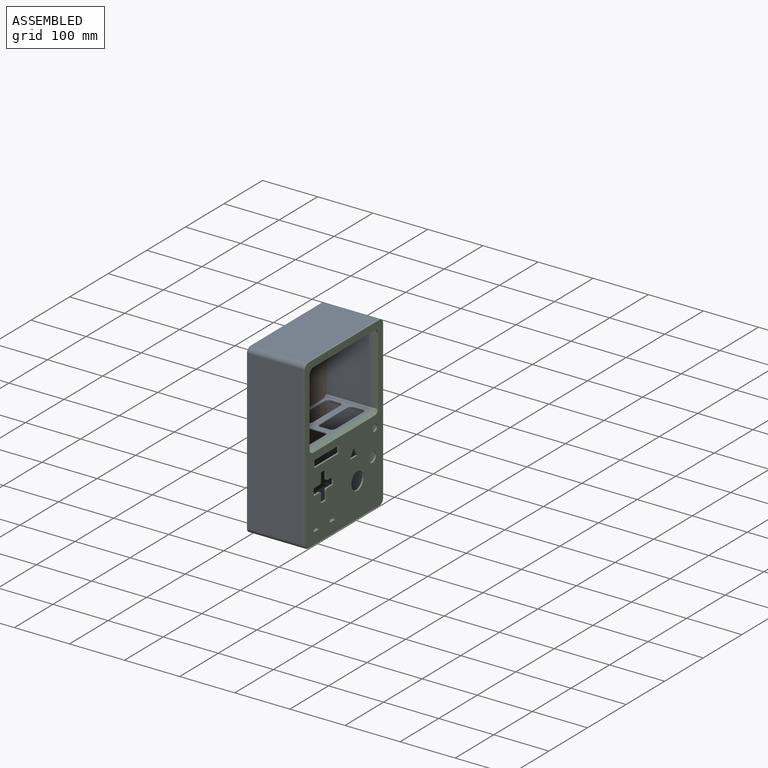
[diagram: assembled view]
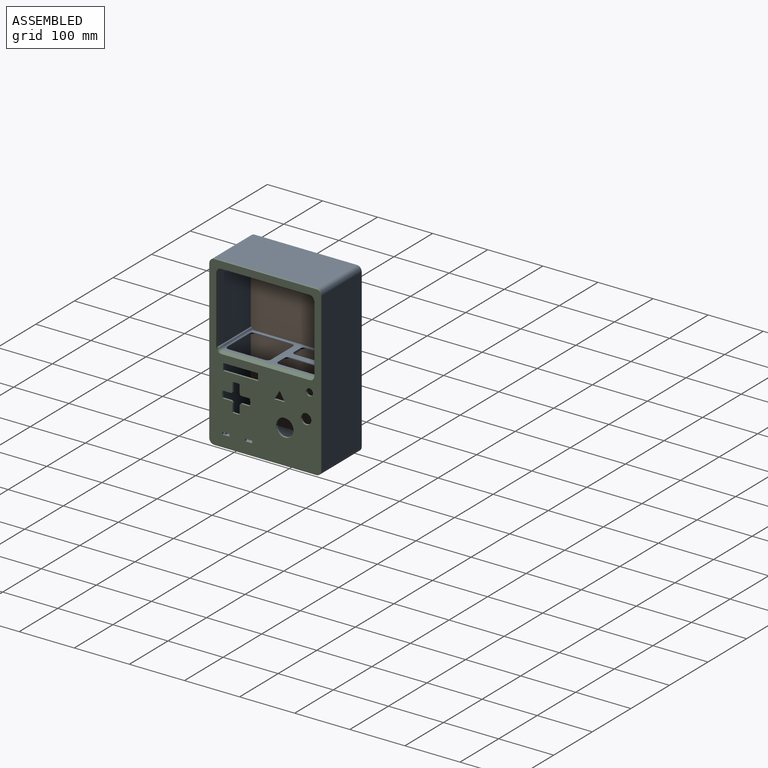
[diagram: assembled view, second angle]
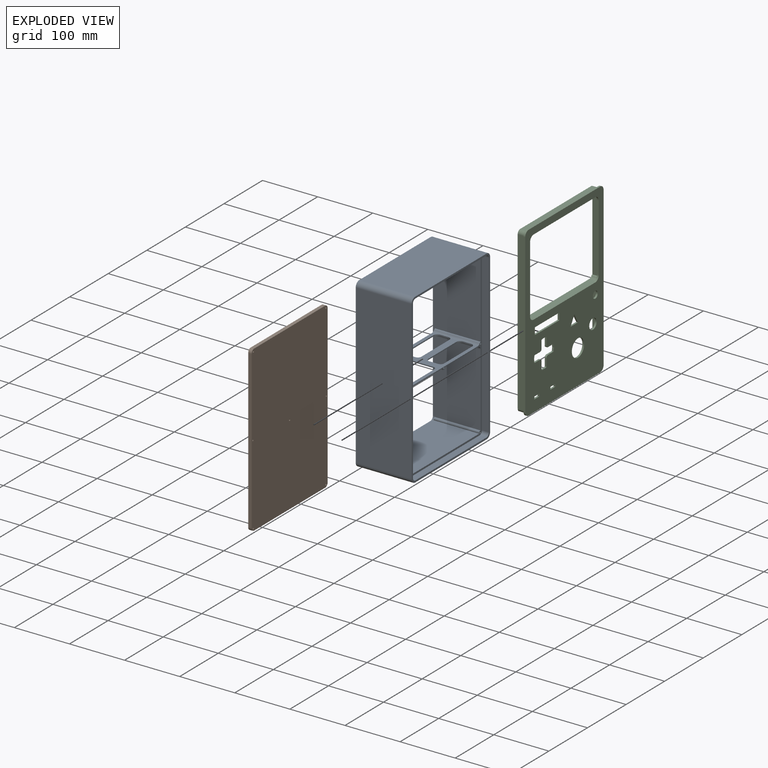
[diagram: exploded view]
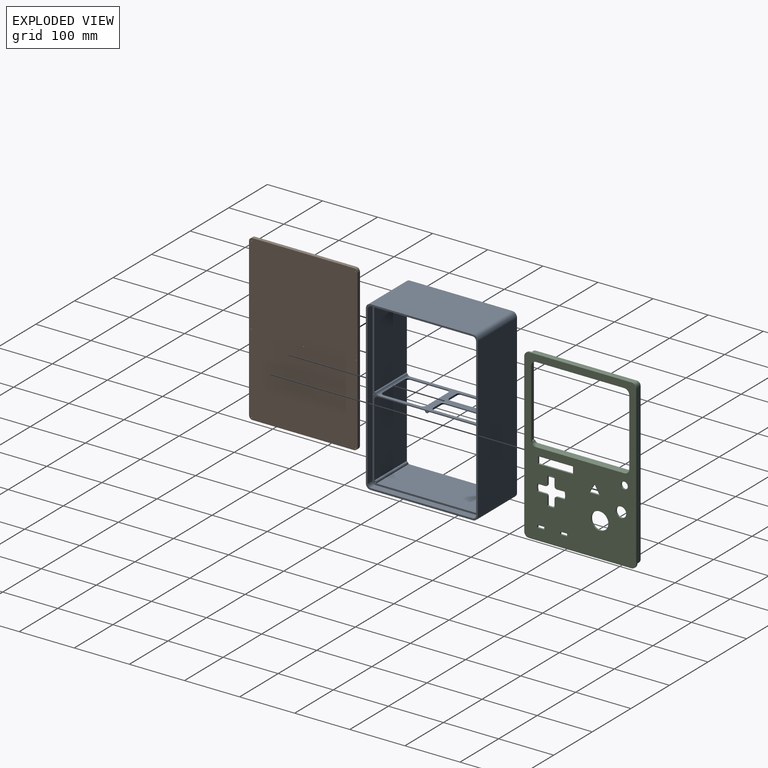
[diagram: exploded view, second angle]
ASSEMBLY  parts=3 mates=2
PART A: 81 faces, bbox 101.6x203.2x304.8 mm
  f0: plane 85.73x12.7mm, normal (0,0,-1), area 561.7mm2, adj f28,f36,f56,f74,f75,f76
  f1: plane 85.73x25.4mm, normal (0,0,-1), area 1123.3mm2, adj f28,f36,f66,f67,f68,f78,f79,f80
  f2: plane 184.15x12.7mm, normal (0,0,-1), area 2338.7mm2, adj f6,f7,f27,f56
  f3: plane 285.75x12.7mm, normal (0,1,0), area 3629mm2, adj f7,f8,f27,f56
  f4: plane 184.15x12.7mm, normal (0,0,1), area 2338.7mm2, adj f8,f9,f27,f56
  f5: plane 285.75x12.7mm, normal (0,-1,0), area 3629mm2, adj f6,f9,f27,f56
  f6: cylinder r=6.35mm len=12.7mm, axis (1,0,0), area 126.7mm2, adj f2,f5,f27,f56
  f7: cylinder r=6.35mm len=12.7mm, axis (1,0,0), area 126.7mm2, adj f2,f3,f27,f56
  f8: cylinder r=6.35mm len=12.7mm, axis (1,0,0), area 126.7mm2, adj f3,f4,f27,f56
  f9: cylinder r=6.35mm len=12.7mm, axis (1,0,0), area 126.7mm2, adj f4,f5,f27,f56
  f10: plane 185.42x101.6mm, normal (0,0,-1), area 18838.7mm2, adj f11,f25,f26,f27
  f11: cylinder r=8.89mm len=101.6mm, axis (1,0,0), area 1418.8mm2, adj f10,f12,f26,f27
  f12: plane 287.02x101.6mm, normal (0,-1,0), area 29161.2mm2, adj f11,f13,f26,f27
  f13: cylinder r=8.89mm len=101.6mm, axis (1,0,0), area 1418.8mm2, adj f12,f14,f26,f27
  f14: plane 185.42x101.6mm, normal (0,0,1), area 18838.7mm2, adj f13,f15,f26,f27
  f15: cylinder r=8.89mm len=101.6mm, axis (1,0,0), area 1418.8mm2, adj f14,f16,f26,f27
  f16: plane 287.02x101.6mm, normal (0,1,0), area 29161.2mm2, adj f15,f25,f26,f27
  f17: cylinder r=6.35mm len=6.35mm, axis (1,0,0), area 63.3mm2, adj f18,f24,f26,f55
  f18: plane 184.15x6.35mm, normal (0,0,-1), area 1169.4mm2, adj f17,f19,f26,f55
  f19: cylinder r=6.35mm len=6.35mm, axis (1,0,0), area 63.3mm2, adj f18,f20,f26,f55
  f20: plane 285.75x6.35mm, normal (0,1,0), area 1814.5mm2, adj f19,f21,f26,f55
  f21: cylinder r=6.35mm len=6.35mm, axis (1,0,0), area 63.3mm2, adj f20,f22,f26,f55
  f22: plane 184.15x6.35mm, normal (0,0,1), area 1169.4mm2, adj f21,f23,f26,f55
  f23: cylinder r=6.35mm len=6.35mm, axis (1,0,0), area 63.3mm2, adj f22,f24,f26,f55
  f24: plane 285.75x6.35mm, normal (0,-1,0), area 1814.5mm2, adj f17,f23,f26,f55
  f25: cylinder r=8.89mm len=101.6mm, axis (1,0,0), area 1418.8mm2, adj f10,f16,f26,f27
  f26: plane 304.8x203.2mm, normal (-1,0,0), area 3152.2mm2, adj f10,f11,f12,f13,f14,f15,f16,f17
  f27: plane 304.8x203.2mm, normal (1,0,0), area 3152.2mm2, adj f2,f3,f4,f5,f6,f7,f8,f9
  f28: cylinder r=3.18mm len=82.55mm, axis (1,0,0), area 823.4mm2, adj f0,f1,f29,f51,f55,f56,f69,f77
  f29: plane 85.73x82.55mm, normal (0,0,-1), area 1566.9mm2, adj f28,f30,f55,f56,f58,f59,f60,f61
  f30: cylinder r=6.35mm len=82.55mm, axis (1,0,0), area 823.4mm2, adj f29,f31,f55,f56,f57
  f31: plane 132.72x82.55mm, normal (0,1,0), area 10955.6mm2, adj f30,f32,f55,f56
  f32: cylinder r=2.92mm len=82.55mm, axis (1,0,0), area 567.2mm2, adj f31,f33,f55,f56
  f33: plane 182.88x82.55mm, normal (0,0,1), area 15096.7mm2, adj f32,f34,f55,f56
  f34: cylinder r=2.92mm len=82.55mm, axis (1,0,0), area 567.2mm2, adj f33,f35,f55,f56
  f35: plane 132.72x82.55mm, normal (0,-1,0), area 10955.6mm2, adj f34,f36,f55,f56
  f36: cylinder r=6.35mm len=82.55mm, axis (1,0,0), area 823.4mm2, adj f0,f1,f35,f51,f55,f56,f65,f73
  f37: cylinder r=3.17mm len=82.55mm, axis (1,0,0), area 264.3mm2, adj f38,f53,f55,f56
  f38: plane 139.07x82.55mm, normal (0,-1,0), area 11479.8mm2, adj f37,f39,f55,f56
  f39: cylinder r=2.92mm len=82.55mm, axis (1,0,0), area 567.2mm2, adj f38,f40,f55,f56
  f40: plane 182.88x82.55mm, normal (0,0,-1), area 15096.7mm2, adj f39,f41,f55,f56
  f41: cylinder r=2.92mm len=82.55mm, axis (1,0,0), area 567.2mm2, adj f40,f42,f55,f56
  f42: plane 139.07x82.55mm, normal (0,1,0), area 11479.8mm2, adj f41,f43,f55,f56
  f43: cylinder r=3.17mm len=82.55mm, axis (1,0,0), area 264.3mm2, adj f42,f44,f55,f56
  f44: cylinder r=6.35mm len=82.55mm, axis (1,0,0), area 419.5mm2, adj f43,f45,f55,f56,f57,f58,f64
  f45: plane 174.39x82.55mm, normal (0,0,1), area 4238.1mm2, adj f44,f53,f55,f56,f58,f59,f60,f61
  f46: cylinder r=1.27mm len=82.55mm, axis (1,0,0), area 658.7mm2, adj f55,f56
  f47: cylinder r=1.27mm len=82.55mm, axis (1,0,0), area 658.7mm2, adj f55,f56
  f48: cylinder r=1.27mm len=82.55mm, axis (1,0,0), area 658.7mm2, adj f55,f56
  f49: cylinder r=1.27mm len=82.55mm, axis (1,0,0), area 658.7mm2, adj f55,f56
  f50: cylinder r=1.27mm len=82.55mm, axis (1,0,0), area 658.7mm2, adj f55,f56
  f51: plane 85.73x12.7mm, normal (0,0,-1), area 561.7mm2, adj f28,f36,f55,f70,f71,f72
  f52: cylinder r=1.27mm len=82.55mm, axis (1,0,0), area 658.7mm2, adj f55,f56
  f53: cylinder r=6.35mm len=82.55mm, axis (1,0,0), area 453.1mm2, adj f37,f45,f55,f56,f65,f66,f72,f73
  f54: cylinder r=1.27mm len=82.55mm, axis (1,0,0), area 658.7mm2, adj f55,f56
  f55: plane 298.45x196.85mm, normal (-1,0,0), area 3518.8mm2, adj f17,f18,f19,f20,f21,f22,f23,f24
  f56: plane 298.45x196.85mm, normal (1,0,0), area 3518.8mm2, adj f0,f2,f3,f4,f5,f6,f7,f8
  f57: plane 57.15x2.14mm, normal (0,1,0), area 122.2mm2, adj f30,f44,f58,f64
  f58: cylinder r=6.35mm len=6.35mm, axis (0,0,-1), area 19.6mm2, adj f29,f44,f45,f57,f59
  f59: plane 66.68x1.91mm, normal (1,0,0), area 127mm2, adj f29,f45,f58,f60
  f60: cylinder r=6.35mm len=6.35mm, axis (0,0,-1), area 19mm2, adj f29,f45,f59,f61
  f61: plane 57.15x1.91mm, normal (0,-1,0), area 108.9mm2, adj f29,f45,f60,f62
  f62: cylinder r=6.35mm len=6.35mm, axis (0,0,-1), area 19mm2, adj f29,f45,f61,f63
  f63: plane 66.68x1.91mm, normal (-1,0,0), area 127mm2, adj f29,f45,f62,f64
  f64: cylinder r=6.35mm len=6.35mm, axis (0,0,-1), area 19.6mm2, adj f29,f44,f45,f57,f63
  f65: plane 15.88x2.14mm, normal (0,-1,0), area 34mm2, adj f36,f53,f66,f72
  f66: cylinder r=6.35mm len=6.35mm, axis (0,0,-1), area 19.6mm2, adj f1,f45,f53,f65,f67
  f67: plane 73.03x1.91mm, normal (-1,0,0), area 139.1mm2, adj f1,f45,f66,f68
  f68: cylinder r=6.35mm len=6.35mm, axis (0,0,-1), area 19mm2, adj f1,f45,f67,f69
  f69: plane 15.88x1.91mm, normal (0,1,0), area 30.2mm2, adj f28,f45,f68,f70
  f70: cylinder r=6.35mm len=6.35mm, axis (0,0,-1), area 19mm2, adj f45,f51,f69,f71
  f71: plane 73.03x1.91mm, normal (1,0,0), area 139.1mm2, adj f45,f51,f70,f72
  f72: cylinder r=6.35mm len=6.35mm, axis (0,0,-1), area 19.6mm2, adj f45,f51,f53,f65,f71
  f73: plane 15.88x2.14mm, normal (0,-1,0), area 34mm2, adj f36,f53,f74,f80
  f74: cylinder r=6.35mm len=6.35mm, axis (0,0,-1), area 19.6mm2, adj f0,f45,f53,f73,f75
  f75: plane 73.03x1.91mm, normal (-1,0,0), area 139.1mm2, adj f0,f45,f74,f76
  f76: cylinder r=6.35mm len=6.35mm, axis (0,0,-1), area 19mm2, adj f0,f45,f75,f77
  f77: plane 15.88x1.91mm, normal (0,1,0), area 30.2mm2, adj f28,f45,f76,f78
  f78: cylinder r=6.35mm len=6.35mm, axis (0,0,-1), area 19mm2, adj f1,f45,f77,f79
  f79: plane 73.03x1.91mm, normal (1,0,0), area 139.1mm2, adj f1,f45,f78,f80
  f80: cylinder r=6.35mm len=6.35mm, axis (0,0,-1), area 19.6mm2, adj f1,f45,f53,f73,f79
PART B: 27 faces, bbox 6.4x196.9x298.5 mm
  f0: plane 285.75x6.35mm, normal (0,1,0), area 1814.5mm2, adj f1,f13,f15,f16
  f1: cylinder r=6.35mm len=6.35mm, axis (1,0,0), area 63.3mm2, adj f0,f2,f15,f16
  f2: plane 184.15x6.35mm, normal (0,0,-1), area 1169.4mm2, adj f1,f3,f15,f16
  f3: cylinder r=6.35mm len=6.35mm, axis (1,0,0), area 63.3mm2, adj f2,f4,f15,f16
  f4: plane 285.75x6.35mm, normal (0,-1,0), area 1814.5mm2, adj f3,f5,f15,f16
  f5: cylinder r=6.35mm len=6.35mm, axis (1,0,0), area 63.3mm2, adj f4,f6,f15,f16
  f6: plane 184.15x6.35mm, normal (0,0,1), area 1169.4mm2, adj f5,f13,f15,f16
  f7: cylinder r=1.27mm len=3.18mm, axis (1,0,0), area 25.3mm2, adj f15,f24
  f8: cylinder r=1.27mm len=3.18mm, axis (1,0,0), area 25.3mm2, adj f15,f18
  f9: cylinder r=1.27mm len=6.35mm, axis (1,0,0), area 50.7mm2, adj f15,f16
  f10: cylinder r=1.27mm len=3.18mm, axis (1,0,0), area 25.3mm2, adj f15,f26
  f11: cylinder r=1.27mm len=6.35mm, axis (1,0,0), area 50.7mm2, adj f15,f16
  f12: cylinder r=1.27mm len=3.18mm, axis (1,0,0), area 25.3mm2, adj f15,f20
  f13: cylinder r=6.35mm len=6.35mm, axis (1,0,0), area 63.3mm2, adj f0,f6,f15,f16
  f14: cylinder r=1.27mm len=3.18mm, axis (1,0,0), area 25.3mm2, adj f15,f22
  f15: plane 298.45x196.85mm, normal (-1,0,0), area 58679.8mm2, adj f0,f1,f2,f3,f4,f5,f6,f7
  f16: plane 298.45x196.85mm, normal (1,0,0), area 58566.6mm2, adj f0,f1,f2,f3,f4,f5,f6,f9
  f17: cylinder r=2.92mm len=5.83mm, axis (1,0,0), area 58.2mm2, adj f16,f18
  f18: plane 5.83x5.83mm, normal (1,0,0), area 21.6mm2, adj f8,f17
  f19: cylinder r=2.92mm len=5.83mm, axis (1,0,0), area 58.2mm2, adj f16,f20
  f20: plane 5.83x5.83mm, normal (1,0,0), area 21.6mm2, adj f12,f19
  f21: cylinder r=2.92mm len=5.83mm, axis (1,0,0), area 58.2mm2, adj f16,f22
  f22: plane 5.83x5.83mm, normal (1,0,0), area 21.6mm2, adj f14,f21
  f23: cylinder r=2.92mm len=5.83mm, axis (1,0,0), area 58.2mm2, adj f16,f24
  f24: plane 5.83x5.83mm, normal (1,0,0), area 21.6mm2, adj f7,f23
  f25: cylinder r=3.18mm len=6.35mm, axis (1,0,0), area 63.3mm2, adj f16,f26
  f26: plane 6.35x6.35mm, normal (1,0,0), area 26.6mm2, adj f10,f25
PART C: 103 faces, bbox 15.9x203.2x304.8 mm
  f0: plane 190.5x142.88mm, normal (-1,0,0), area 23739mm2, adj f2,f3,f4,f5,f6,f7,f8,f9
  f1: plane 304.8x203.2mm, normal (-1,0,0), area 3152.2mm2, adj f41,f42,f43,f44,f45,f46,f47,f56
  f2: plane 4.63x3.18mm, normal (0,1,0), area 14.7mm2, adj f0,f3,f57,f58
  f3: plane 12.7x3.18mm, normal (0,0,-1), area 40.3mm2, adj f0,f2,f4,f58
  f4: plane 4.63x3.18mm, normal (0,-1,0), area 14.7mm2, adj f0,f3,f57,f58
  f5: plane 12.7x3.18mm, normal (0,0,-1), area 40.3mm2, adj f0,f6,f48,f58
  f6: plane 4.63x3.18mm, normal (0,-1,0), area 14.7mm2, adj f0,f5,f7,f58
  f7: plane 12.7x3.18mm, normal (0,0,1), area 40.3mm2, adj f0,f6,f48,f58
  f8: cylinder r=3.81mm len=3.81mm, axis (-1,0,0), area 19mm2, adj f0,f9,f49,f58
  f9: plane 14.45x3.18mm, normal (0,-1,0), area 45.9mm2, adj f0,f8,f10,f58
  f10: plane 3.18x2.7mm, normal (0,-0.28,0.96), area 8.9mm2, adj f0,f9,f11,f58
  f11: plane 7.3x3.18mm, normal (0,0,1), area 23.2mm2, adj f0,f10,f12,f58
  f12: plane 3.18x2.7mm, normal (0,0.28,0.96), area 8.9mm2, adj f0,f11,f13,f58
  f13: plane 14.45x3.18mm, normal (0,1,0), area 45.9mm2, adj f0,f12,f14,f58
  f14: cylinder r=3.81mm len=3.81mm, axis (-1,0,0), area 19mm2, adj f0,f13,f15,f58
  f15: plane 14.59x3.18mm, normal (0,0,1), area 46.3mm2, adj f0,f14,f16,f58
  f16: plane 6.35x3.18mm, normal (0,0.99,0.14), area 20.4mm2, adj f0,f15,f17,f58
  f17: plane 6.35x3.18mm, normal (0,0.99,-0.14), area 20.4mm2, adj f0,f16,f18,f58
  f18: plane 14.59x3.18mm, normal (0,0,-1), area 46.3mm2, adj f0,f17,f19,f58
  f19: cylinder r=3.81mm len=3.81mm, axis (-1,0,0), area 19mm2, adj f0,f18,f20,f58
  f20: plane 14.45x3.18mm, normal (0,1,0), area 45.9mm2, adj f0,f19,f21,f58
  f21: plane 3.18x2.7mm, normal (0,0.28,-0.96), area 8.9mm2, adj f0,f20,f22,f58
  f22: plane 7.3x3.18mm, normal (0,0,-1), area 23.2mm2, adj f0,f21,f23,f58
  f23: plane 3.18x2.7mm, normal (0,-0.28,-0.96), area 8.9mm2, adj f0,f22,f24,f58
  f24: plane 14.45x3.18mm, normal (0,-1,0), area 45.9mm2, adj f0,f23,f25,f58
  f25: cylinder r=3.81mm len=3.81mm, axis (-1,0,0), area 19mm2, adj f0,f24,f26,f58
  f26: plane 14.59x3.18mm, normal (0,0,-1), area 46.3mm2, adj f0,f25,f27,f58
  f27: plane 6.35x3.18mm, normal (0,-0.99,-0.14), area 20.4mm2, adj f0,f26,f28,f58
  f28: plane 6.35x3.18mm, normal (0,-0.99,0.14), area 20.4mm2, adj f0,f27,f49,f58
  f29: plane 12.7x3.18mm, normal (0,1,0), area 40.3mm2, adj f0,f30,f50,f58
  f30: plane 63.5x3.18mm, normal (0,0,-1), area 201.6mm2, adj f0,f29,f31,f58
  f31: plane 12.7x3.18mm, normal (0,-1,0), area 40.3mm2, adj f0,f30,f50,f58
  f32: plane 160.02x3.18mm, normal (0,0,1), area 508.1mm2, adj f33,f51,f58,f59
  f33: cylinder r=8.89mm len=8.89mm, axis (-1,0,0), area 44.3mm2, adj f32,f34,f58,f59
  f34: plane 121.92x3.18mm, normal (0,1,0), area 387.1mm2, adj f33,f35,f58,f59
  f35: cylinder r=8.89mm len=8.89mm, axis (-1,0,0), area 44.3mm2, adj f34,f36,f58,f59
  f36: plane 160.02x3.18mm, normal (0,0,-1), area 508.1mm2, adj f35,f37,f58,f59
  f37: cylinder r=8.89mm len=8.89mm, axis (-1,0,0), area 44.3mm2, adj f36,f38,f58,f59
  f38: plane 121.92x3.18mm, normal (0,-1,0), area 387.1mm2, adj f37,f51,f58,f59
  f39: plane 16.51x9.53mm, normal (0,-0.87,-0.5), area 60.5mm2, adj f0,f40,f52,f58
  f40: plane 19.05x3.18mm, normal (0,0,1), area 60.5mm2, adj f0,f39,f52,f58
  f41: cylinder r=8.89mm len=8.89mm, axis (-1,0,0), area 44.3mm2, adj f1,f42,f56,f58
  f42: plane 185.42x3.18mm, normal (0,0,-1), area 588.7mm2, adj f1,f41,f43,f58
  f43: cylinder r=8.89mm len=8.89mm, axis (-1,0,0), area 44.3mm2, adj f1,f42,f44,f58
  f44: plane 287.02x3.18mm, normal (0,1,0), area 911.3mm2, adj f1,f43,f45,f58
  f45: cylinder r=8.89mm len=8.89mm, axis (-1,0,0), area 44.3mm2, adj f1,f44,f46,f58
  f46: plane 185.42x3.18mm, normal (0,0,1), area 588.7mm2, adj f1,f45,f47,f58
  f47: cylinder r=8.89mm len=8.89mm, axis (-1,0,0), area 44.3mm2, adj f1,f46,f56,f58
  f48: plane 4.63x3.18mm, normal (0,1,0), area 14.7mm2, adj f0,f5,f7,f58
  f49: plane 14.59x3.18mm, normal (0,0,1), area 46.3mm2, adj f0,f8,f28,f58
  f50: plane 63.5x3.18mm, normal (0,0,1), area 201.6mm2, adj f0,f29,f31,f58
  f51: cylinder r=8.89mm len=8.89mm, axis (-1,0,0), area 44.3mm2, adj f32,f38,f58,f59
  f52: plane 16.51x9.53mm, normal (0,0.87,-0.5), area 60.5mm2, adj f0,f39,f40,f58
  f53: cylinder r=9.53mm len=19.05mm, axis (-1,0,0), area 190mm2, adj f0,f58
  f54: cylinder r=15.88mm len=31.75mm, axis (-1,0,0), area 316.7mm2, adj f0,f58
  f55: cylinder r=6.35mm len=12.7mm, axis (-1,0,0), area 126.7mm2, adj f0,f58
  f56: plane 287.02x3.18mm, normal (0,-1,0), area 911.3mm2, adj f1,f41,f47,f58
  f57: plane 12.7x3.18mm, normal (0,0,1), area 40.3mm2, adj f0,f2,f4,f58
  f58: plane 304.8x203.2mm, normal (1,0,0), area 33679.7mm2, adj f2,f3,f4,f5,f6,f7,f8,f9
  f59: plane 190.5x147.32mm, normal (-1,0,0), area 3234.2mm2, adj f32,f33,f34,f35,f36,f37,f38,f51
  f60: cylinder r=3.18mm len=12.7mm, axis (1,0,0), area 126.7mm2, adj f0,f61,f89,f95
  f61: plane 85.73x12.7mm, normal (0,0,-1), area 1088.7mm2, adj f0,f60,f62,f95
  f62: cylinder r=6.35mm len=12.7mm, axis (1,0,0), area 126.7mm2, adj f0,f61,f63,f95
  f63: plane 132.72x12.7mm, normal (0,1,0), area 1685.5mm2, adj f0,f62,f64,f95
  f64: cylinder r=2.92mm len=12.7mm, axis (1,0,0), area 87.3mm2, adj f0,f63,f65,f95
  f65: plane 182.88x12.7mm, normal (0,0,1), area 2322.6mm2, adj f0,f64,f66,f95
  f66: cylinder r=2.92mm len=12.7mm, axis (1,0,0), area 87.3mm2, adj f0,f65,f67,f95
  f67: plane 132.72x12.7mm, normal (0,-1,0), area 1685.5mm2, adj f0,f66,f68,f95
  f68: cylinder r=6.35mm len=12.7mm, axis (1,0,0), area 126.7mm2, adj f0,f67,f89,f95
  f69: cylinder r=3.17mm len=12.7mm, axis (1,0,0), area 40.7mm2, adj f59,f70,f91,f95
  f70: plane 139.07x12.7mm, normal (0,-1,0), area 1766.1mm2, adj f59,f69,f71,f95
  f71: cylinder r=2.92mm len=12.7mm, axis (1,0,0), area 87.3mm2, adj f59,f70,f72,f95
  f72: plane 182.88x12.7mm, normal (0,0,-1), area 2322.6mm2, adj f59,f71,f73,f95
  f73: cylinder r=2.92mm len=12.7mm, axis (1,0,0), area 87.3mm2, adj f59,f72,f74,f95
  f74: plane 139.07x12.7mm, normal (0,1,0), area 1766.1mm2, adj f59,f73,f75,f95
  f75: cylinder r=3.17mm len=12.7mm, axis (1,0,0), area 40.7mm2, adj f59,f74,f76,f95
  f76: cylinder r=6.35mm len=12.7mm, axis (1,0,0), area 81.3mm2, adj f59,f75,f77,f95
  f77: plane 174.39x12.7mm, normal (0,0,1), area 2214.7mm2, adj f59,f76,f91,f95
  f78: plane 285.75x12.7mm, normal (0,1,0), area 3629mm2, adj f1,f79,f93,f95
  f79: cylinder r=6.35mm len=12.7mm, axis (1,0,0), area 126.7mm2, adj f1,f78,f80,f95
  f80: plane 184.15x12.7mm, normal (0,0,-1), area 2338.7mm2, adj f1,f79,f81,f95
  f81: cylinder r=6.35mm len=12.7mm, axis (1,0,0), area 126.7mm2, adj f1,f80,f82,f95
  f82: plane 285.75x12.7mm, normal (0,-1,0), area 3629mm2, adj f1,f81,f83,f95
  f83: cylinder r=6.35mm len=12.7mm, axis (1,0,0), area 126.7mm2, adj f1,f82,f84,f95
  f84: plane 184.15x12.7mm, normal (0,0,1), area 2338.7mm2, adj f1,f83,f93,f95
  f85: cylinder r=1.27mm len=12.7mm, axis (1,0,0), area 101.3mm2, adj f95,f101
  f86: cylinder r=1.27mm len=12.7mm, axis (1,0,0), area 101.3mm2, adj f95,f100
  f87: cylinder r=1.27mm len=12.7mm, axis (1,0,0), area 101.3mm2, adj f95,f99
  f88: cylinder r=1.27mm len=12.7mm, axis (1,0,0), area 101.3mm2, adj f95,f98
  f89: plane 85.73x12.7mm, normal (0,0,-1), area 1088.7mm2, adj f0,f60,f68,f95
  f90: cylinder r=1.27mm len=12.7mm, axis (1,0,0), area 101.3mm2, adj f95,f97
  f91: cylinder r=6.35mm len=12.7mm, axis (1,0,0), area 81.3mm2, adj f59,f69,f77,f95
  f92: cylinder r=1.27mm len=12.7mm, axis (1,0,0), area 101.3mm2, adj f95,f96
  f93: cylinder r=6.35mm len=12.7mm, axis (1,0,0), area 126.7mm2, adj f1,f78,f84,f95
  f94: cylinder r=1.27mm len=12.7mm, axis (1,0,0), area 101.3mm2, adj f95,f102
  f95: plane 298.45x196.85mm, normal (-1,0,0), area 3518.8mm2, adj f60,f61,f62,f63,f64,f65,f66,f67
  f96: plane 2.54x2.54mm, normal (-1,0,0), area 5.1mm2, adj f92
  f97: plane 2.54x2.54mm, normal (-1,0,0), area 5.1mm2, adj f90
  f98: plane 2.54x2.54mm, normal (-1,0,0), area 5.1mm2, adj f88
  f99: plane 2.54x2.54mm, normal (-1,0,0), area 5.1mm2, adj f87
  f100: plane 2.54x2.54mm, normal (-1,0,0), area 5.1mm2, adj f86
  f101: plane 2.54x2.54mm, normal (-1,0,0), area 5.1mm2, adj f85
  f102: plane 2.54x2.54mm, normal (-1,0,0), area 5.1mm2, adj f94
PLACE A t=(-97.58,-41.12,26.95)mm
PLACE B rot(axis=(0,0,-1),180deg) t=(-199.18,162.08,26.95)mm
PLACE C t=(-97.58,-41.12,26.95)mm
MATE planar A.f3 <-> C.f82  axis (0,1,0) through (-103.93,-37.95,179.35)mm
MATE planar B.f4 <-> A.f24  axis (0,1,0) through (-196,158.9,179.35)mm
